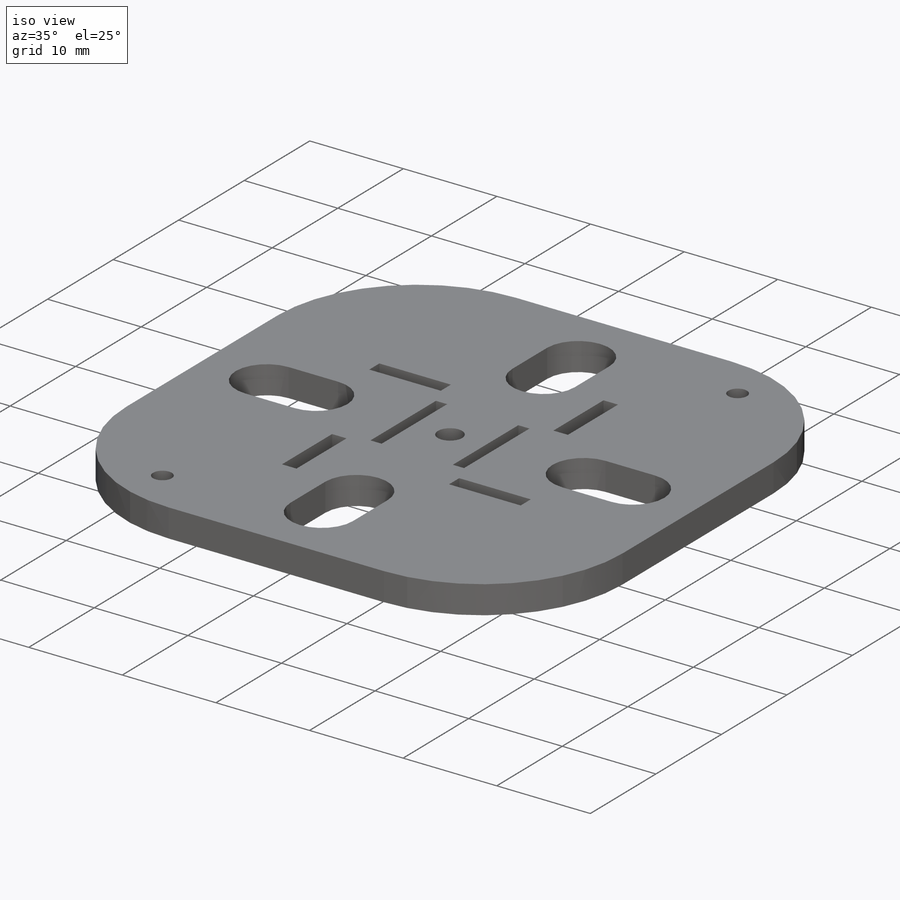
[diagram: iso view]
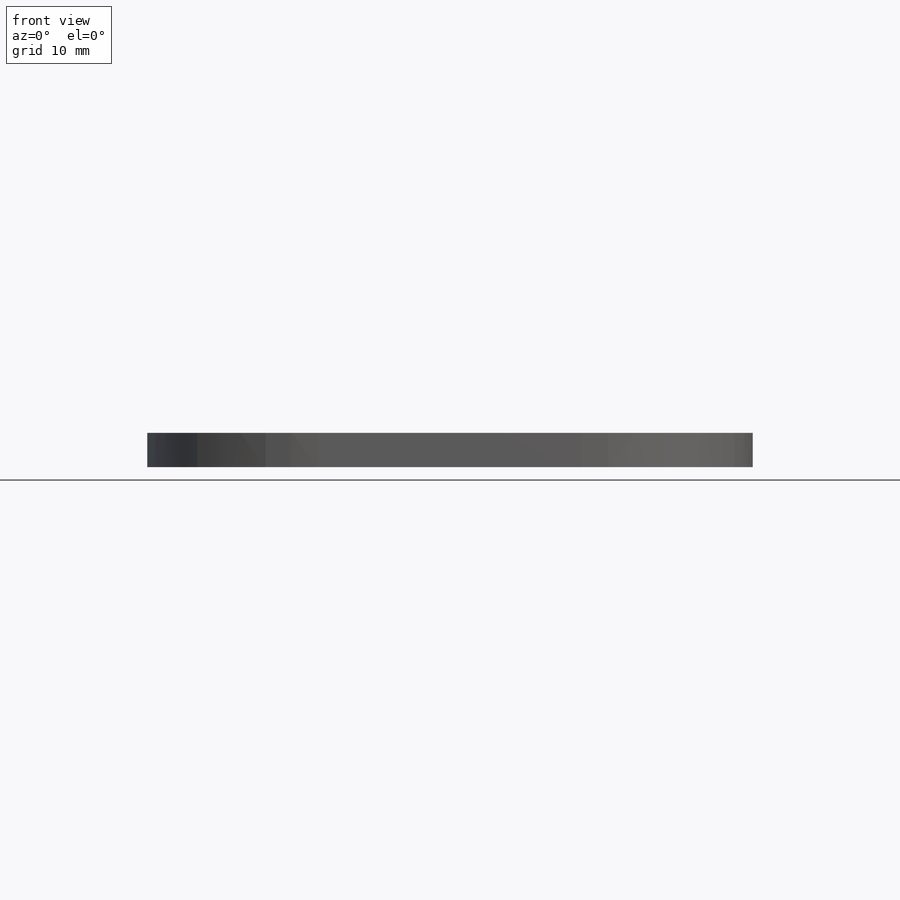
[diagram: front view]
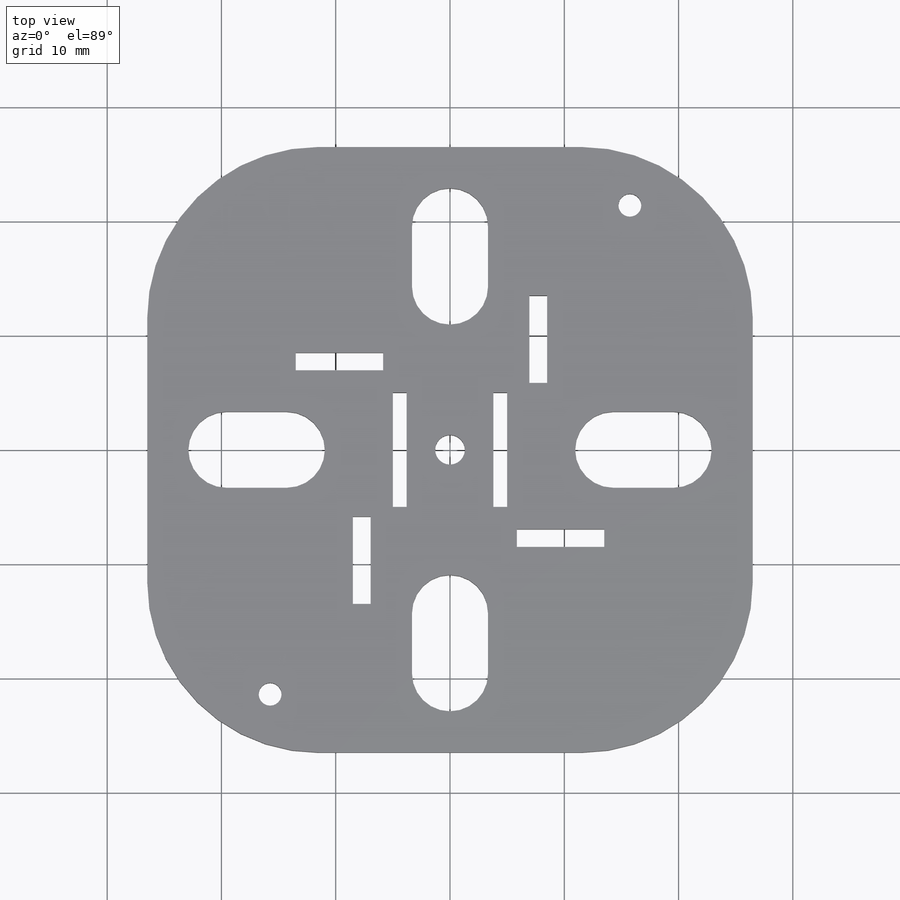
[diagram: top view]
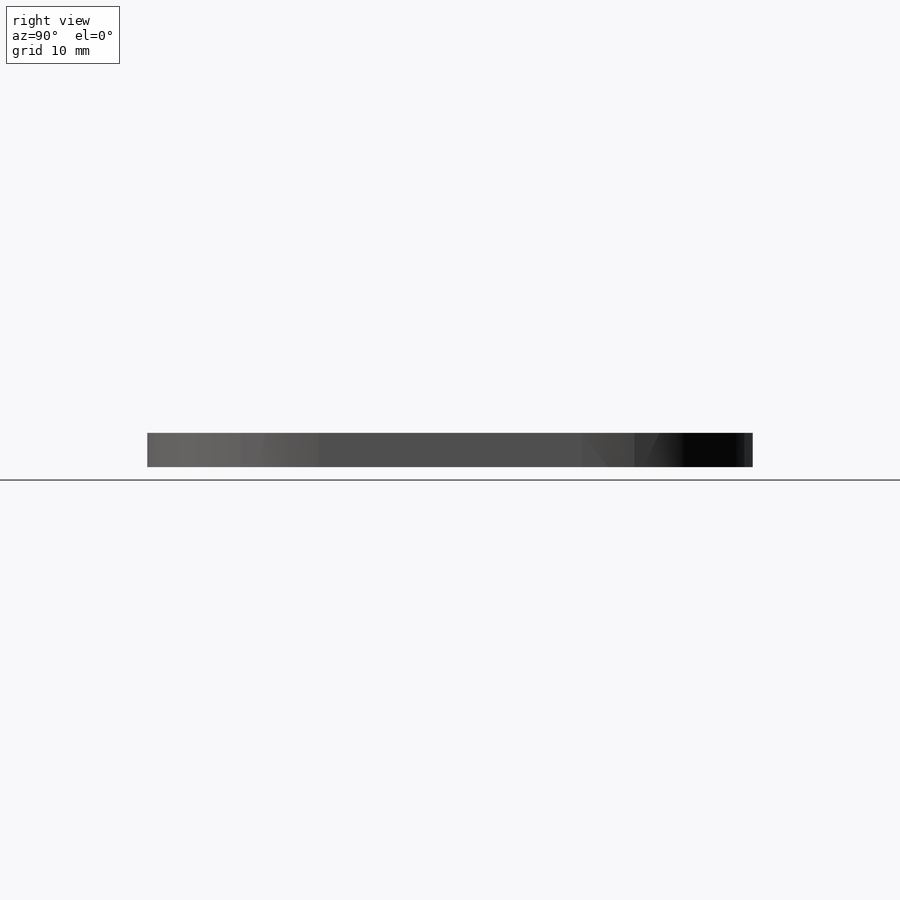
[diagram: right view]
SOLIDWORKS PART (.sldprt)
format: sldprt  version: not decoded by parser v0  size: 277,504 bytes
history: native  units: mm
features: sketch x4, plane x3, cut_extrude x3, extrude x2, material x1, fillet x1 (+9 scaffold rows collapsed)
feature tree (23):
  scaffold x9  (default folders/planes/origin — collapsed)
  material  "Acrílico (médio-alto impacto)"
  plane  "Plano frontal"
  plane  "Plano superior"
  plane  "Plano direito"
  sketch  "Esboço1"  dims[D1=53.0mm D2=53.0mm]
  extrude  "Ressalto-extrusão1"  Depth=3mm
  sketch  "Esboço3"  dims[D1=1.5mm]
  cut_extrude  "Corte-extrusão1"  [1 undecoded]
  sketch  "Esboço4"
  extrude  "Bloco2"  Depth=7.65mm
  cut_extrude  "Corte-extrusão2"  Depth=10mm
  fillet  "Filete1"  Radius=15mm
  sketch  "Esboço5"  dims[c1.D1=5.0mm c1.D2=~44.213203mm c2.D1=5.0mm c2.D2=~44.213203mm c3.D2=90.0deg c3.D3=4.0mm c3.D4=2.0 c3.D5=4.0]
  cut_extrude  "Corte-extrusão3"  [1 undecoded]
decode coverage: 7 of 10 modeling features carry decoded parameters
note: ~ marks probable driven/reference dimensions
note: 2 parameter values undecoded
note: suppression state not decoded; provenance and decode notes live in map.json
